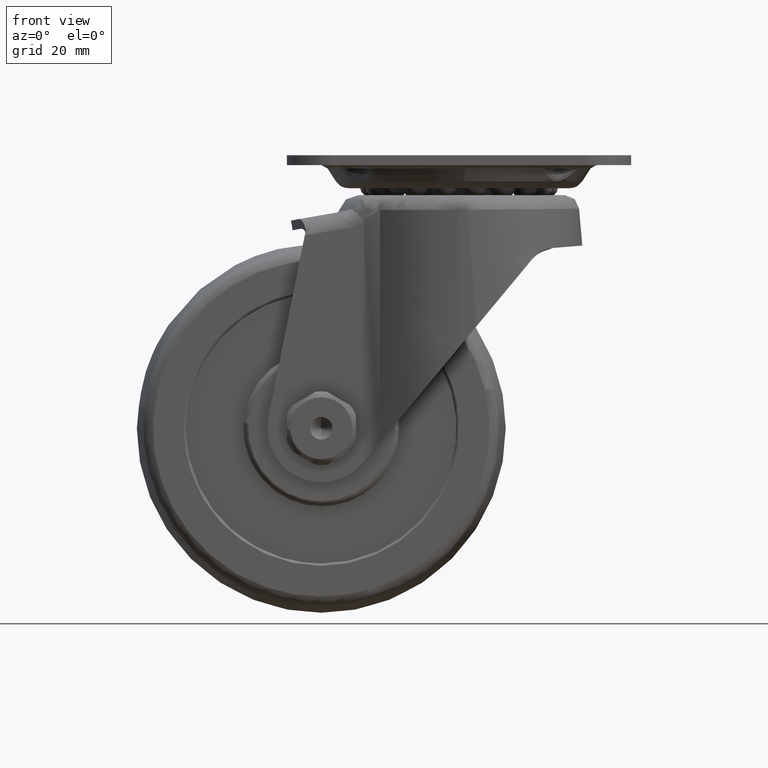
[diagram: clean part render]
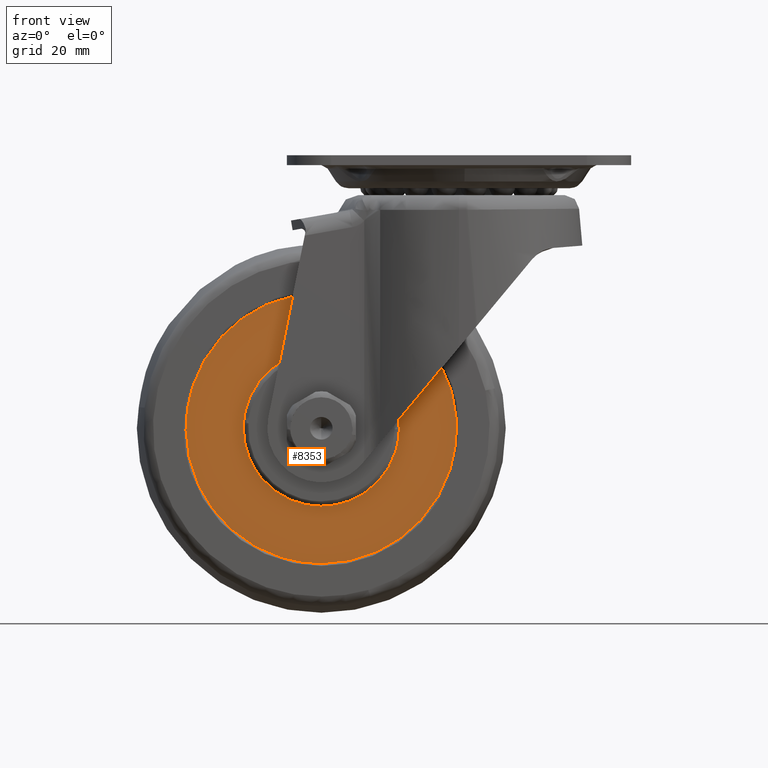
[diagram: same view with one face highlighted and labeled with its STEP entity id]
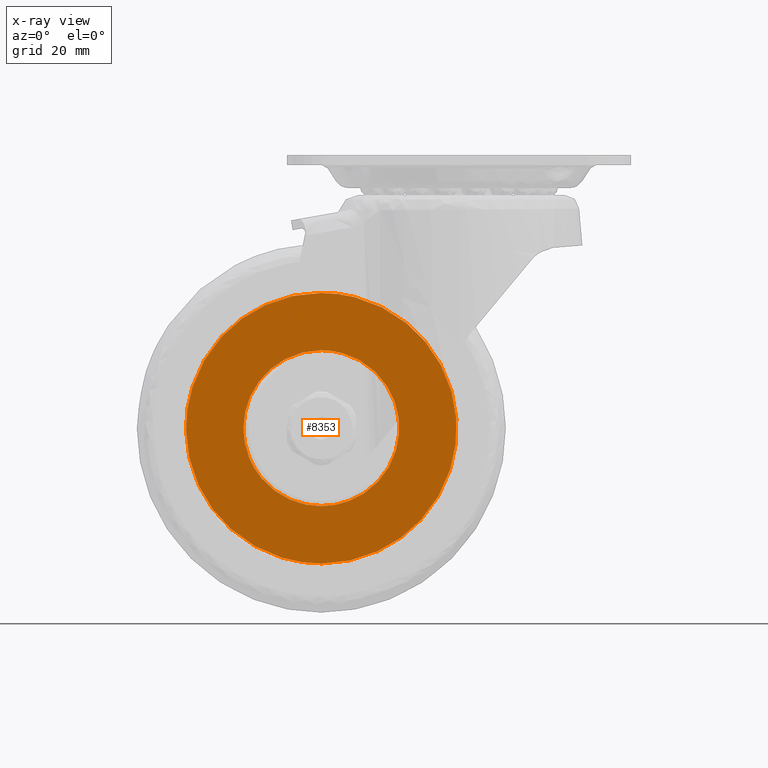
[diagram: x-ray of the same camera — body ghosted, the highlighted face saturated]
A machine part, front view. The second image highlights one B-rep face of the part: STEP entity #8353.
The next image is the same camera in x-ray: the body ghosted, the highlighted face saturated — about 0% of this face is hidden behind the body in this view.
In plain terms, the highlighted face is a freeform B-spline surface patch.
Its self-contained STEP definition (entity closure, byte-faithful):
#6427=CARTESIAN_POINT('',(-19.397757310925218,-12.500000000000000,-68.812548729253180));
#6428=VERTEX_POINT('',#6427);
#6434=CARTESIAN_POINT('',(-28.0,-12.500000000000000,-39.650009999999703));
#6435=VERTEX_POINT('',#6434);
#6436=CARTESIAN_POINT('',(-19.397757310925215,-12.500000000000002,-68.812548729253180));
#6437=CARTESIAN_POINT('',(-12.150003999999896,-12.500000000000000,-64.129226076392797));
#6438=CARTESIAN_POINT('',(-12.150003999999900,-12.500000000000000,-55.500005999999800));
#6439=CARTESIAN_POINT('',(-12.150003999999896,-12.500000000000000,-39.650009999999696));
#6440=CARTESIAN_POINT('',(-28.0,-12.500000000000000,-39.650009999999703));
#6448=(BOUNDED_CURVE()B_SPLINE_CURVE(2,(#6436,#6437,#6438,#6439,#6440),.UNSPECIFIED.,.F.,.U.)B_SPLINE_CURVE_WITH_KNOTS((3,2,3),(0.092934655886564,0.250000000000000,0.500000000000000),.UNSPECIFIED.)CURVE()GEOMETRIC_REPRESENTATION_ITEM()RATIONAL_B_SPLINE_CURVE((0.863190151967026,0.815986503194293,1.0,0.707106781186548,1.0))REPRESENTATION_ITEM(''));
#6449=EDGE_CURVE('',#6428,#6435,#6448,.T.);
#6451=CARTESIAN_POINT('',(-40.230249730990643,-12.500000000000000,-65.581839400606952));
#6452=VERTEX_POINT('',#6451);
#6453=CARTESIAN_POINT('',(-28.0,-12.500000000000000,-39.650009999999703));
#6454=CARTESIAN_POINT('',(-43.849996000000104,-12.500000000000000,-39.650009999999696));
#6455=CARTESIAN_POINT('',(-43.849996000000097,-12.500000000000000,-55.500005999999800));
#6456=CARTESIAN_POINT('',(-43.849996000000090,-12.500000000000002,-61.190733232345053));
#6457=CARTESIAN_POINT('',(-40.230249730990636,-12.499999999999996,-65.581839400606938));
#6465=(BOUNDED_CURVE()B_SPLINE_CURVE(2,(#6453,#6454,#6455,#6456,#6457),.UNSPECIFIED.,.F.,.U.)B_SPLINE_CURVE_WITH_KNOTS((3,2,3),(0.500000000000000,0.750000000000000,0.860504578294819),.UNSPECIFIED.)CURVE()GEOMETRIC_REPRESENTATION_ITEM()RATIONAL_B_SPLINE_CURVE((1.0,0.707106781186548,1.0,0.870535833478429,0.855522731962910))REPRESENTATION_ITEM(''));
#6466=EDGE_CURVE('',#6435,#6452,#6465,.T.);
#6568=CARTESIAN_POINT('',(-28.0,-12.500000000000000,-71.350001999999918));
#6569=VERTEX_POINT('',#6568);
#6570=CARTESIAN_POINT('',(-40.230249730990636,-12.499999999999996,-65.581839400606938));
#6571=CARTESIAN_POINT('',(-35.475346467868953,-12.500000000000004,-71.350001999999904));
#6572=CARTESIAN_POINT('',(-28.0,-12.500000000000000,-71.350001999999918));
#6580=(BOUNDED_CURVE()B_SPLINE_CURVE(2,(#6570,#6571,#6572),.UNSPECIFIED.,.F.,.U.)B_SPLINE_CURVE_WITH_KNOTS((3,3),(0.860504578294819,1.0),.UNSPECIFIED.)CURVE()GEOMETRIC_REPRESENTATION_ITEM()RATIONAL_B_SPLINE_CURVE((0.855522731962910,0.836570947708118,1.0))REPRESENTATION_ITEM(''));
#6581=EDGE_CURVE('',#6452,#6569,#6580,.T.);
#6583=CARTESIAN_POINT('',(-28.0,-12.500000000000000,-71.350001999999918));
#6584=CARTESIAN_POINT('',(-23.324635023078187,-12.500000000000004,-71.350001999999918));
#6585=CARTESIAN_POINT('',(-19.397757310925208,-12.499999999999995,-68.812548729253180));
#6593=(BOUNDED_CURVE()B_SPLINE_CURVE(2,(#6583,#6584,#6585),.UNSPECIFIED.,.F.,.U.)B_SPLINE_CURVE_WITH_KNOTS((3,3),(0.0,0.092934655886564),.UNSPECIFIED.)CURVE()GEOMETRIC_REPRESENTATION_ITEM()RATIONAL_B_SPLINE_CURVE((1.0,0.891120277992255,0.863190151967026))REPRESENTATION_ITEM(''));
#6594=EDGE_CURVE('',#6569,#6428,#6593,.T.);
#7050=CARTESIAN_POINT('',(-0.566943969388688,-12.500000001925139,-53.582341581666903));
#7051=VERTEX_POINT('',#7050);
#7065=CARTESIAN_POINT('',(-28.0,-12.500000000000000,-83.000005999999800));
#7066=VERTEX_POINT('',#7065);
#7067=CARTESIAN_POINT('',(-28.0,-12.500000000000000,-83.000005999999800));
#7068=CARTESIAN_POINT('',(-0.500000000000004,-12.499999999999998,-83.000005999999786));
#7069=CARTESIAN_POINT('',(-0.500000000000000,-12.500000000000000,-55.500005999999800));
#7070=CARTESIAN_POINT('',(-0.500000000000001,-12.499999999999996,-54.540005313436964));
#7071=CARTESIAN_POINT('',(-0.566943969388688,-12.500000001925137,-53.582341581666903));
#7079=(BOUNDED_CURVE()B_SPLINE_CURVE(2,(#7067,#7068,#7069,#7070,#7071),.UNSPECIFIED.,.F.,.U.)B_SPLINE_CURVE_WITH_KNOTS((3,2,3),(0.0,0.250000000000000,0.262166313464969),.UNSPECIFIED.)CURVE()GEOMETRIC_REPRESENTATION_ITEM()RATIONAL_B_SPLINE_CURVE((1.0,0.707106781186547,1.0,0.985746277152607,0.972879876386848))REPRESENTATION_ITEM(''));
#7080=EDGE_CURVE('',#7066,#7051,#7079,.T.);
#7082=CARTESIAN_POINT('',(-55.497828715604200,-12.500000002070420,-55.845572096850582));
#7083=VERTEX_POINT('',#7082);
#7084=CARTESIAN_POINT('',(-55.497828715604207,-12.500000002070415,-55.845572096850582));
#7085=CARTESIAN_POINT('',(-55.156578072335449,-12.500000000000000,-83.000005999999800));
#7086=CARTESIAN_POINT('',(-28.0,-12.500000000000000,-83.000005999999800));
#7094=(BOUNDED_CURVE()B_SPLINE_CURVE(2,(#7084,#7085,#7086),.UNSPECIFIED.,.F.,.U.)B_SPLINE_CURVE_WITH_KNOTS((3,3),(0.752215704079021,1.0),.UNSPECIFIED.)CURVE()GEOMETRIC_REPRESENTATION_ITEM()RATIONAL_B_SPLINE_CURVE((0.994854295642288,0.709702639985118,1.0))REPRESENTATION_ITEM(''));
#7095=EDGE_CURVE('',#7083,#7066,#7094,.T.);
#7182=CARTESIAN_POINT('',(-28.0,-12.500000000000000,-28.000005999999800));
#7183=VERTEX_POINT('',#7182);
#7184=CARTESIAN_POINT('',(-28.0,-12.500000000000000,-28.000005999999800));
#7185=CARTESIAN_POINT('',(-55.499999999999993,-12.499999999999998,-28.000005999999807));
#7186=CARTESIAN_POINT('',(-55.500000000000000,-12.500000000000000,-55.500005999999800));
#7187=CARTESIAN_POINT('',(-55.499999999999986,-12.500000000000000,-55.672795869835412));
#7188=CARTESIAN_POINT('',(-55.497828715604207,-12.500000002070417,-55.845572096850582));
#7196=(BOUNDED_CURVE()B_SPLINE_CURVE(2,(#7184,#7185,#7186,#7187,#7188),.UNSPECIFIED.,.F.,.U.)B_SPLINE_CURVE_WITH_KNOTS((3,2,3),(0.500000000000000,0.750000000000000,0.752215704079022),.UNSPECIFIED.)CURVE()GEOMETRIC_REPRESENTATION_ITEM()RATIONAL_B_SPLINE_CURVE((1.0,0.707106781186547,1.0,0.997404141201429,0.994854295642286))REPRESENTATION_ITEM(''));
#7197=EDGE_CURVE('',#7183,#7083,#7196,.T.);
#7199=CARTESIAN_POINT('',(-0.566943969388688,-12.500000001925137,-53.582341581666903));
#7200=CARTESIAN_POINT('',(-2.355236700183408,-12.499999999999998,-28.000005999999797));
#7201=CARTESIAN_POINT('',(-28.0,-12.500000000000000,-28.000005999999800));
#7209=(BOUNDED_CURVE()B_SPLINE_CURVE(2,(#7199,#7200,#7201),.UNSPECIFIED.,.F.,.U.)B_SPLINE_CURVE_WITH_KNOTS((3,3),(0.262166313464969,0.500000000000000),.UNSPECIFIED.)CURVE()GEOMETRIC_REPRESENTATION_ITEM()RATIONAL_B_SPLINE_CURVE((0.972879876386848,0.721360504033940,1.0))REPRESENTATION_ITEM(''));
#7210=EDGE_CURVE('',#7051,#7183,#7209,.T.);
#8336=CARTESIAN_POINT('',(-58.244814510362872,-12.500000000000000,-85.747257958601722));
#8337=CARTESIAN_POINT('',(-58.244814510362872,-12.500000000000000,-25.252754533136201));
#8338=CARTESIAN_POINT('',(2.243849639509039,-12.500000000000000,-85.747257958601722));
#8339=CARTESIAN_POINT('',(2.243849639509039,-12.500000000000000,-25.252754533136201));
#8340=B_SPLINE_SURFACE_WITH_KNOTS('',1,1,((#8336,#8338),(#8337,#8339)),.UNSPECIFIED.,.F.,.F.,.U.,(2,2),(2,2),(0.0,60.494503425465517),(0.0,60.488664149871909),.UNSPECIFIED.);
#8341=ORIENTED_EDGE('',*,*,#7080,.T.);
#8342=ORIENTED_EDGE('',*,*,#7210,.T.);
#8343=ORIENTED_EDGE('',*,*,#7197,.T.);
#8344=ORIENTED_EDGE('',*,*,#7095,.T.);
#8345=EDGE_LOOP('',(#8341,#8342,#8343,#8344));
#8346=FACE_OUTER_BOUND('',#8345,.T.);
#8347=ORIENTED_EDGE('',*,*,#6466,.F.);
#8348=ORIENTED_EDGE('',*,*,#6449,.F.);
#8349=ORIENTED_EDGE('',*,*,#6594,.F.);
#8350=ORIENTED_EDGE('',*,*,#6581,.F.);
#8351=EDGE_LOOP('',(#8347,#8348,#8349,#8350));
#8352=FACE_BOUND('',#8351,.T.);
#8353=ADVANCED_FACE('',(#8346,#8352),#8340,.F.);